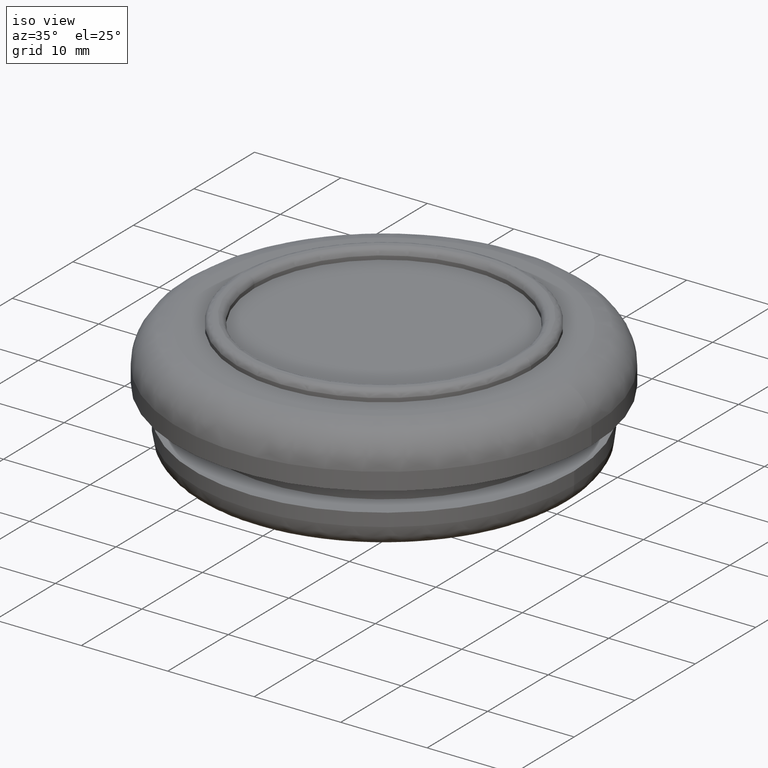
[diagram: clean part render]
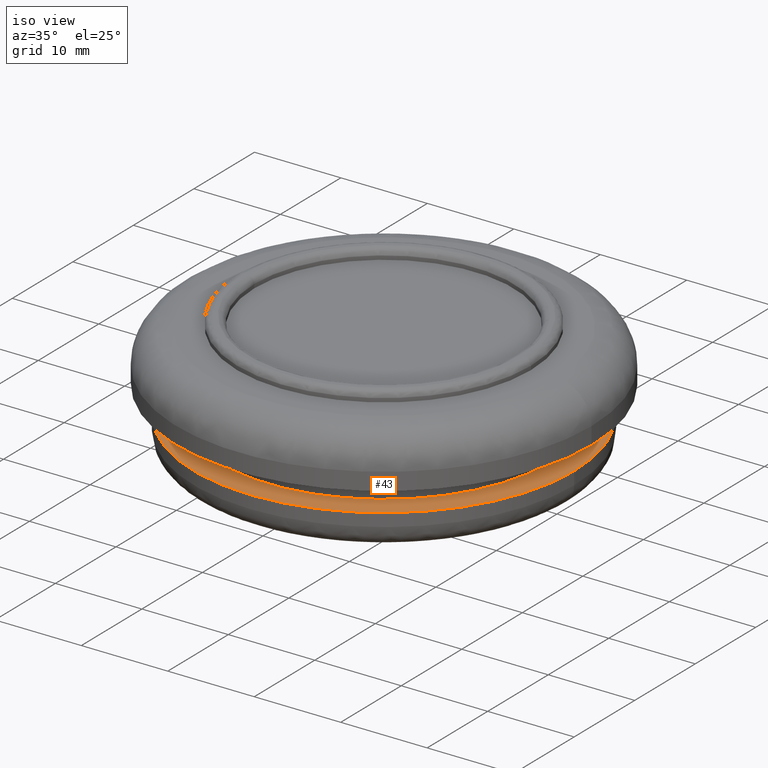
[diagram: same view with one face highlighted and labeled with its STEP entity id]
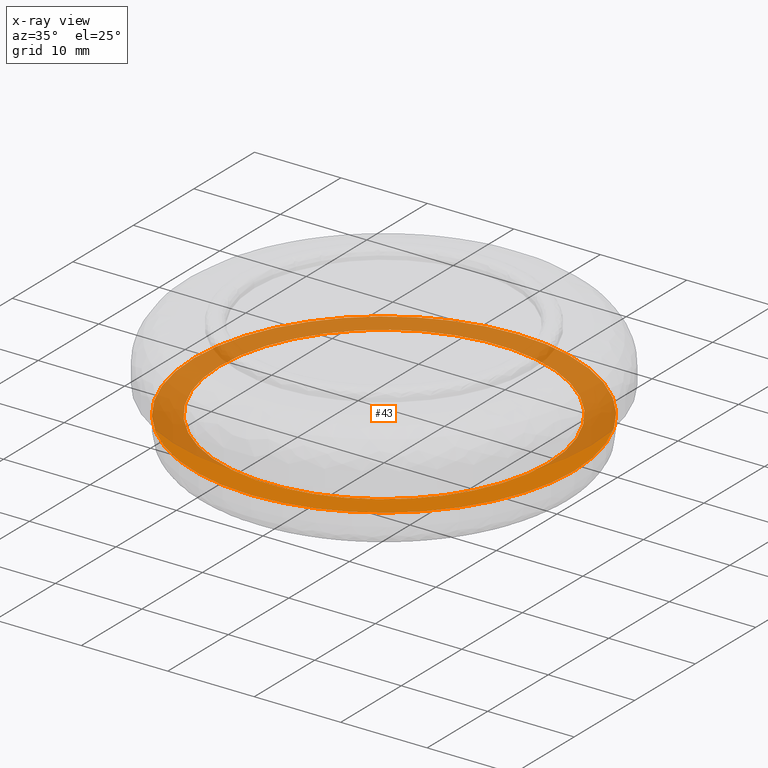
[diagram: x-ray of the same camera — body ghosted, the highlighted face saturated]
A machine part, iso view. The second image highlights one B-rep face of the part: STEP entity #43.
The next image is the same camera in x-ray: the body ghosted, the highlighted face saturated — about 62% of this face is hidden behind the body in this view.
In plain terms, the highlighted planar face has unit normal (0, 0, -1).
Its self-contained STEP definition (entity closure, byte-faithful):
#43=ADVANCED_FACE('',(#100,#101),#99,.F.);
#99=PLANE('',#362);
#100=FACE_OUTER_BOUND('',#363,.T.);
#101=FACE_BOUND('',#364,.T.);
#359=CARTESIAN_POINT('',(5.06000000000E+001,-4.57261413198E+001,4.00000000000E+000));
#360=DIRECTION('',(0.00000000000E+000,0.00000000000E+000,-1.00000000000E+000));
#361=DIRECTION('',(-1.00000000000E+000,0.00000000000E+000,0.00000000000E+000));
#362=AXIS2_PLACEMENT_3D('',#359,#360,#361);
#363=EDGE_LOOP('',(#660,#661));
#364=EDGE_LOOP('',(#662,#663));
#660=ORIENTED_EDGE('',*,*,#764,.F.);
#661=ORIENTED_EDGE('',*,*,#765,.F.);
#662=ORIENTED_EDGE('',*,*,#766,.T.);
#663=ORIENTED_EDGE('',*,*,#767,.T.);
#764=EDGE_CURVE('',#876,#877,#878,.T.);
#765=EDGE_CURVE('',#877,#876,#884,.T.);
#766=EDGE_CURVE('',#890,#891,#892,.T.);
#767=EDGE_CURVE('',#891,#890,#898,.T.);
#876=VERTEX_POINT('',#1200);
#877=VERTEX_POINT('',#1201);
#878=CIRCLE('',#1205,2.20000000000E+001);
#884=CIRCLE('',#1209,2.20000000000E+001);
#890=VERTEX_POINT('',#1210);
#891=VERTEX_POINT('',#1211);
#892=CIRCLE('',#1215,1.90000000000E+001);
#898=CIRCLE('',#1219,1.90000000000E+001);
#1200=CARTESIAN_POINT('',(2.20000000000E+001,0.00000000000E+000,4.00000000000E+000));
#1201=CARTESIAN_POINT('',(-2.20000000000E+001,-3.87837187134E-015,4.00000000000E+000));
#1202=CARTESIAN_POINT('',(0.00000000000E+000,0.00000000000E+000,4.00000000000E+000));
#1203=DIRECTION('',(0.00000000000E+000,0.00000000000E+000,-1.00000000000E+000));
#1204=DIRECTION('',(-1.00000000000E+000,-5.38289951332E-017,-0.00000000000E+000));
#1205=AXIS2_PLACEMENT_3D('',#1202,#1203,#1204);
#1206=CARTESIAN_POINT('',(0.00000000000E+000,0.00000000000E+000,4.00000000000E+000));
#1207=DIRECTION('',(0.00000000000E+000,0.00000000000E+000,-1.00000000000E+000));
#1208=DIRECTION('',(-1.00000000000E+000,-5.38289951332E-017,-0.00000000000E+000));
#1209=AXIS2_PLACEMENT_3D('',#1206,#1207,#1208);
#1210=CARTESIAN_POINT('',(1.90000000000E+001,2.32675207226E-015,4.00000000000E+000));
#1211=CARTESIAN_POINT('',(-1.90000000000E+001,1.18423789293E-015,4.00000000000E+000));
#1212=CARTESIAN_POINT('',(0.00000000000E+000,0.00000000000E+000,4.00000000000E+000));
#1213=DIRECTION('',(0.00000000000E+000,0.00000000000E+000,-1.00000000000E+000));
#1214=DIRECTION('',(1.00000000000E+000,-0.00000000000E+000,-0.00000000000E+000));
#1215=AXIS2_PLACEMENT_3D('',#1212,#1213,#1214);
#1216=CARTESIAN_POINT('',(0.00000000000E+000,0.00000000000E+000,4.00000000000E+000));
#1217=DIRECTION('',(0.00000000000E+000,0.00000000000E+000,-1.00000000000E+000));
#1218=DIRECTION('',(1.00000000000E+000,-0.00000000000E+000,-0.00000000000E+000));
#1219=AXIS2_PLACEMENT_3D('',#1216,#1217,#1218);